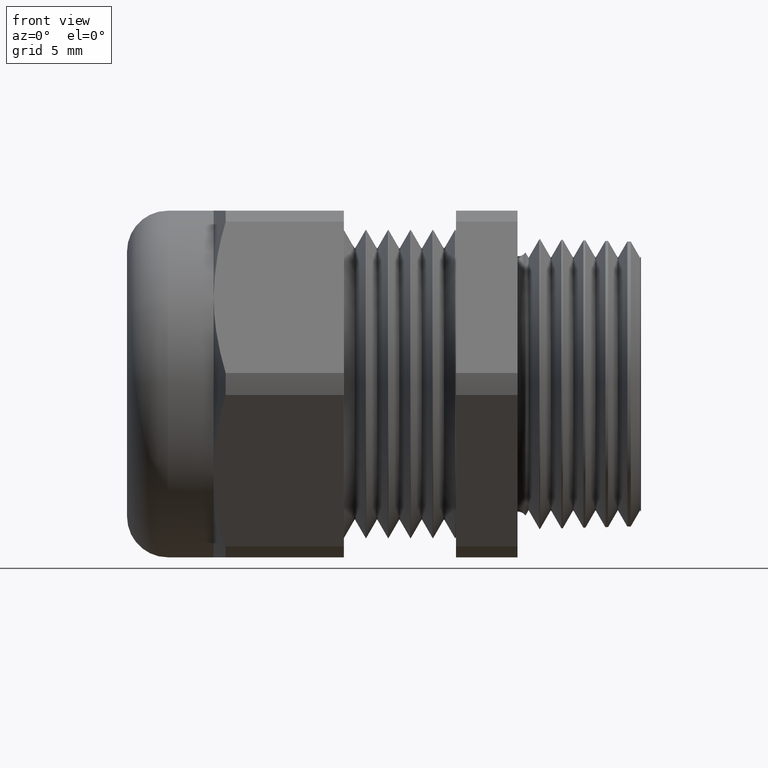
[diagram: clean part render]
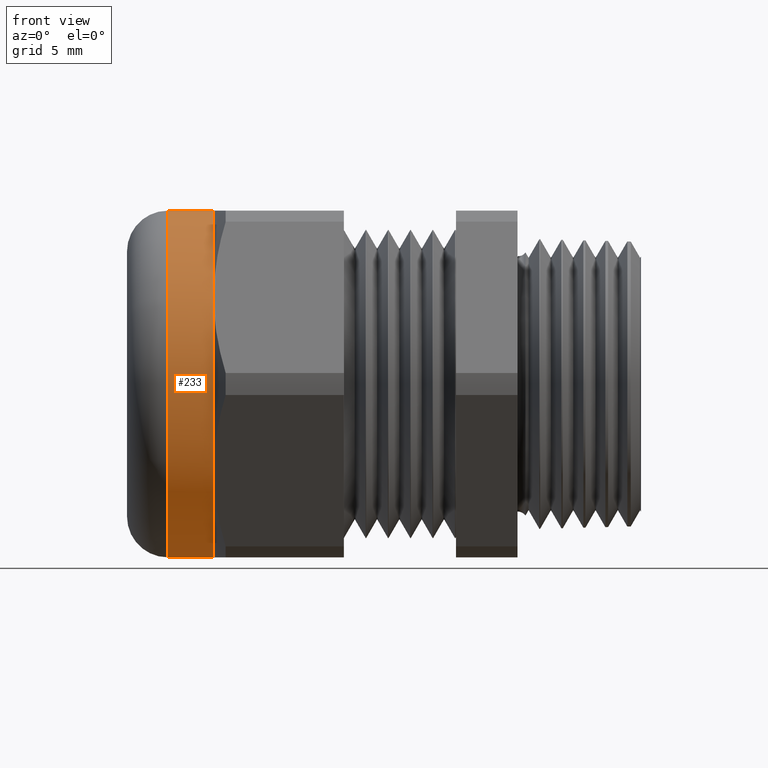
[diagram: same view with one face highlighted and labeled with its STEP entity id]
A machine part, front view. The second image highlights one B-rep face of the part: STEP entity #233.
In plain terms, the highlighted cylindrical surface (partial cylindrical patch) has radius 11.049 mm, axis along (-1, 0, 0).
Its self-contained STEP definition (entity closure, byte-faithful):
#126 = VERTEX_POINT ( 'NONE', #2806 ) ;
#151 = VERTEX_POINT ( 'NONE', #2850 ) ;
#228 = ORIENTED_EDGE ( 'NONE', *, *, #248, .T. ) ;
#229 = EDGE_CURVE ( 'NONE', #2507, #151, #3032, .T. ) ;
#230 = ORIENTED_EDGE ( 'NONE', *, *, #2520, .F. ) ;
#231 = ORIENTED_EDGE ( 'NONE', *, *, #229, .T. ) ;
#232 = EDGE_LOOP ( 'NONE', ( #230, #231, #228, #250, #251, #247 ) ) ;
#233 = ADVANCED_FACE ( 'NONE', ( #3028 ), #3027, .T. ) ;
#245 = EDGE_CURVE ( 'NONE', #2543, #2514, #3015, .T. ) ;
#247 = ORIENTED_EDGE ( 'NONE', *, *, #245, .T. ) ;
#248 = EDGE_CURVE ( 'NONE', #151, #126, #3065, .T. ) ;
#250 = ORIENTED_EDGE ( 'NONE', *, *, #252, .T. ) ;
#251 = ORIENTED_EDGE ( 'NONE', *, *, #2524, .T. ) ;
#252 = EDGE_CURVE ( 'NONE', #126, #2525, #3061, .T. ) ;
#1932 = DIRECTION ( 'NONE',  ( -1.000000000000000000, 0.0000000000000000000, 0.0000000000000000000 ) ) ;
#1933 = VECTOR ( 'NONE', #1932, 39.37007874015748100 ) ;
#1934 = CARTESIAN_POINT ( 'NONE',  ( -0.7238591030180623300, 5.327213576290984500E-017, -0.4349999999999998900 ) ) ;
#1935 = LINE ( 'NONE', #1934, #1933 ) ;
#1941 = CARTESIAN_POINT ( 'NONE',  ( -0.8777999999999998000, 5.327213576290984500E-017, -0.4349999999999998900 ) ) ;
#1958 = CARTESIAN_POINT ( 'NONE',  ( -0.7624999999999999600, 0.0000000000000000000, -0.4350000000000000000 ) ) ;
#1984 = CARTESIAN_POINT ( 'NONE',  ( -0.7624999999999999600, 0.0000000000000000000, 0.4350000000000000000 ) ) ;
#1985 = DIRECTION ( 'NONE',  ( -1.000000000000000000, 0.0000000000000000000, 0.0000000000000000000 ) ) ;
#1986 = VECTOR ( 'NONE', #1985, 39.37007874015748100 ) ;
#1987 = CARTESIAN_POINT ( 'NONE',  ( -0.7238591030180623300, 0.0000000000000000000, 0.4349999999999998900 ) ) ;
#1988 = LINE ( 'NONE', #1987, #1986 ) ;
#2015 = CARTESIAN_POINT ( 'NONE',  ( -0.8777999999999998000, 0.0000000000000000000, 0.4349999999999998900 ) ) ;
#2507 = VERTEX_POINT ( 'NONE', #1958 ) ;
#2514 = VERTEX_POINT ( 'NONE', #1941 ) ;
#2520 = EDGE_CURVE ( 'NONE', #2507, #2514, #1935, .T. ) ;
#2524 = EDGE_CURVE ( 'NONE', #2525, #2543, #1988, .T. ) ;
#2525 = VERTEX_POINT ( 'NONE', #1984 ) ;
#2543 = VERTEX_POINT ( 'NONE', #2015 ) ;
#2795 = DIRECTION ( 'NONE',  ( 0.0000000000000000000, 0.0000000000000000000, -1.000000000000000000 ) ) ;
#2806 = CARTESIAN_POINT ( 'NONE',  ( -0.7624999999999999600, -0.3767210506462308500, 0.2174999999999999700 ) ) ;
#2850 = CARTESIAN_POINT ( 'NONE',  ( -0.7624999999999999600, -0.3767210506462306800, -0.2175000000000001400 ) ) ;
#3012 = DIRECTION ( 'NONE',  ( 1.000000000000000000, 0.0000000000000000000, 0.0000000000000000000 ) ) ;
#3013 = CARTESIAN_POINT ( 'NONE',  ( -0.8777999999999998000, 0.0000000000000000000, 0.0000000000000000000 ) ) ;
#3014 = AXIS2_PLACEMENT_3D ( 'NONE', #3013, #3012, #2795 ) ;
#3015 = CIRCLE ( 'NONE', #3014, 0.4349999999999998900 ) ;
#3022 = DIRECTION ( 'NONE',  ( 0.0000000000000000000, 0.0000000000000000000, 1.000000000000000000 ) ) ;
#3023 = DIRECTION ( 'NONE',  ( -1.000000000000000000, 0.0000000000000000000, 0.0000000000000000000 ) ) ;
#3024 = CARTESIAN_POINT ( 'NONE',  ( -0.7238591030180623300, 0.0000000000000000000, 0.0000000000000000000 ) ) ;
#3025 = AXIS2_PLACEMENT_3D ( 'NONE', #3024, #3023, #3022 ) ;
#3027 = CYLINDRICAL_SURFACE ( 'NONE', #3025, 0.4349999999999998900 ) ;
#3028 = FACE_OUTER_BOUND ( 'NONE', #232, .T. ) ;
#3029 = DIRECTION ( 'NONE',  ( 0.0000000000000000000, 0.0000000000000000000, 1.000000000000000000 ) ) ;
#3030 = DIRECTION ( 'NONE',  ( -1.000000000000000000, 0.0000000000000000000, 0.0000000000000000000 ) ) ;
#3031 = AXIS2_PLACEMENT_3D ( 'NONE', #3041, #3030, #3029 ) ;
#3032 = CIRCLE ( 'NONE', #3031, 0.4349999999999998900 ) ;
#3041 = CARTESIAN_POINT ( 'NONE',  ( -0.7624999999999999600, 0.0000000000000000000, 0.0000000000000000000 ) ) ;
#3057 = DIRECTION ( 'NONE',  ( 0.0000000000000000000, 0.0000000000000000000, 1.000000000000000000 ) ) ;
#3058 = DIRECTION ( 'NONE',  ( -1.000000000000000000, 0.0000000000000000000, 0.0000000000000000000 ) ) ;
#3059 = CARTESIAN_POINT ( 'NONE',  ( -0.7624999999999999600, 0.0000000000000000000, 0.0000000000000000000 ) ) ;
#3060 = AXIS2_PLACEMENT_3D ( 'NONE', #3059, #3058, #3057 ) ;
#3061 = CIRCLE ( 'NONE', #3060, 0.4349999999999998900 ) ;
#3062 = DIRECTION ( 'NONE',  ( 0.0000000000000000000, 0.0000000000000000000, 1.000000000000000000 ) ) ;
#3063 = DIRECTION ( 'NONE',  ( -1.000000000000000000, 0.0000000000000000000, 0.0000000000000000000 ) ) ;
#3064 = AXIS2_PLACEMENT_3D ( 'NONE', #3069, #3063, #3062 ) ;
#3065 = CIRCLE ( 'NONE', #3064, 0.4349999999999998900 ) ;
#3069 = CARTESIAN_POINT ( 'NONE',  ( -0.7624999999999999600, 0.0000000000000000000, 0.0000000000000000000 ) ) ;